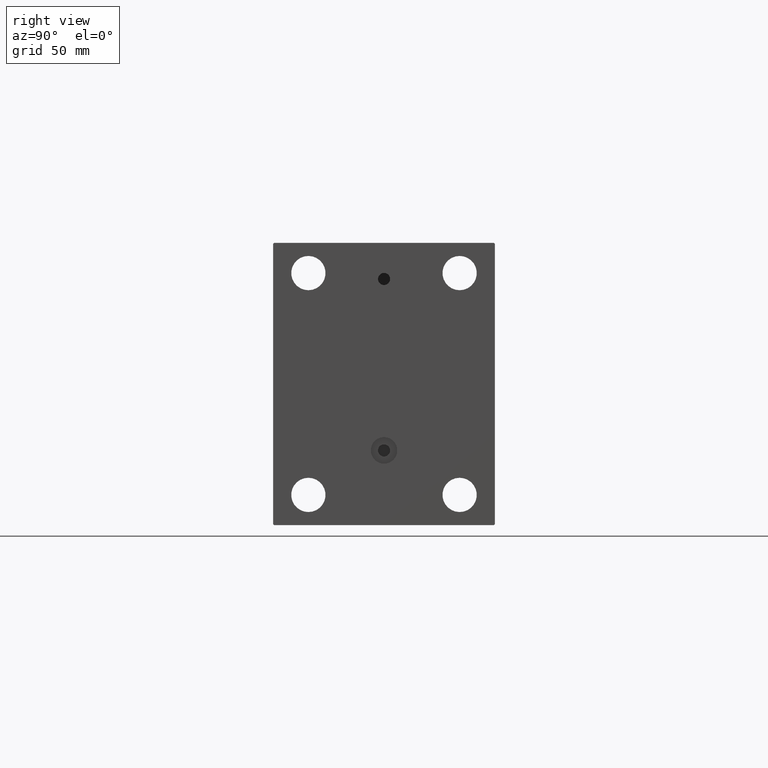
[diagram: clean part render]
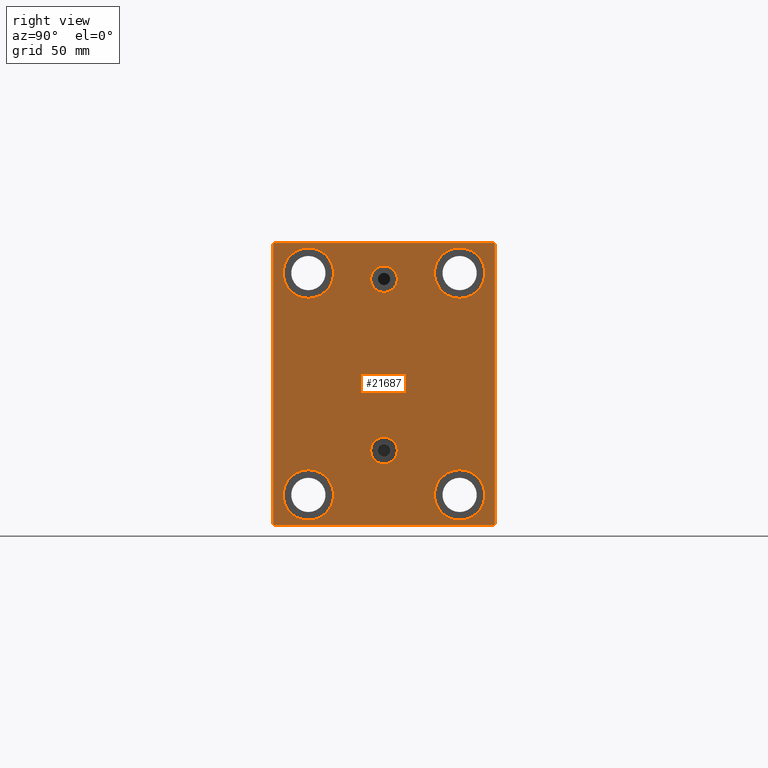
[diagram: same view with one face highlighted and labeled with its STEP entity id]
A machine part, right view. The second image highlights one B-rep face of the part: STEP entity #21687.
In plain terms, the highlighted planar face has unit normal (1, 0, 0).
Its self-contained STEP definition (entity closure, byte-faithful):
#593 = CARTESIAN_POINT ( 'NONE',  ( 243.0000000000000000, 37.49999999999997868, -67.49999999999998579 ) ) ;
#860 = CIRCLE ( 'NONE', #28076, 12.49999999999999645 ) ;
#1037 = EDGE_CURVE ( 'NONE', #4973, #43683, #3001, .T. ) ;
#1264 = DIRECTION ( 'NONE',  ( 0.000000000000000000, 0.000000000000000000, 1.000000000000000000 ) ) ;
#1267 = CARTESIAN_POINT ( 'NONE',  ( 243.0000000000000000, 62.25000000000153477, -62.24999999999806732 ) ) ;
#1695 = CARTESIAN_POINT ( 'NONE',  ( 243.0000000000000000, -55.00000000000000711, 69.99999999999998579 ) ) ;
#1856 = EDGE_CURVE ( 'NONE', #18514, #25308, #41291, .T. ) ;
#2085 = CARTESIAN_POINT ( 'NONE',  ( 243.0000000000000000, 37.50000000000000711, 42.50000000000000711 ) ) ;
#2235 = VECTOR ( 'NONE', #36318, 1000.000000000000000 ) ;
#2495 = VECTOR ( 'NONE', #32603, 1000.000000000000000 ) ;
#2820 = ORIENTED_EDGE ( 'NONE', *, *, #39712, .T. ) ;
#3001 = CIRCLE ( 'NONE', #13331, 12.49999999999999645 ) ;
#3045 = ORIENTED_EDGE ( 'NONE', *, *, #14257, .T. ) ;
#3075 = FACE_OUTER_BOUND ( 'NONE', #15352, .T. ) ;
#3514 = VERTEX_POINT ( 'NONE', #7427 ) ;
#3901 = AXIS2_PLACEMENT_3D ( 'NONE', #6050, #23329, #16191 ) ;
#4973 = VERTEX_POINT ( 'NONE', #593 ) ;
#5307 = DIRECTION ( 'NONE',  ( 0.000000000000000000, 1.000000000000000000, 2.523234146875355012E-16 ) ) ;
#5318 = CARTESIAN_POINT ( 'NONE',  ( 243.0000000000000000, 37.49999999999997868, -54.99999999999999289 ) ) ;
#5478 = VERTEX_POINT ( 'NONE', #29472 ) ;
#5537 = ORIENTED_EDGE ( 'NONE', *, *, #7844, .F. ) ;
#5753 = EDGE_CURVE ( 'NONE', #27516, #32359, #42120, .T. ) ;
#6050 = CARTESIAN_POINT ( 'NONE',  ( 243.0000000000000000, -8.775864102628257178E-15, 52.00000000000000711 ) ) ;
#6467 = LINE ( 'NONE', #38238, #35121 ) ;
#6695 = DIRECTION ( 'NONE',  ( 0.000000000000000000, -0.7071067811865474617, -0.7071067811865474617 ) ) ;
#7046 = AXIS2_PLACEMENT_3D ( 'NONE', #19868, #26314, #29329 ) ;
#7392 = ORIENTED_EDGE ( 'NONE', *, *, #22010, .T. ) ;
#7417 = LINE ( 'NONE', #21484, #8755 ) ;
#7427 = CARTESIAN_POINT ( 'NONE',  ( 243.0000000000000000, 54.50000000000002132, -70.00000000000000000 ) ) ;
#7844 = EDGE_CURVE ( 'NONE', #25308, #18514, #21518, .T. ) ;
#8362 = CARTESIAN_POINT ( 'NONE',  ( 243.0000000000000000, -37.50000000000002132, -42.49999999999999289 ) ) ;
#8755 = VECTOR ( 'NONE', #32075, 1000.000000000000000 ) ;
#9143 = DIRECTION ( 'NONE',  ( 0.000000000000000000, 0.000000000000000000, 1.000000000000000000 ) ) ;
#9185 = CARTESIAN_POINT ( 'NONE',  ( 243.0000000000000000, -37.50000000000000711, 67.50000000000000000 ) ) ;
#9306 = CARTESIAN_POINT ( 'NONE',  ( 243.0000000000000000, 54.49999999999993605, 70.00000000000000000 ) ) ;
#9762 = CARTESIAN_POINT ( 'NONE',  ( 243.0000000000000000, 0.000000000000000000, 0.000000000000000000 ) ) ;
#9817 = CARTESIAN_POINT ( 'NONE',  ( 243.0000000000000000, -54.50000000000000711, -70.00000000000002842 ) ) ;
#10324 = DIRECTION ( 'NONE',  ( -1.000000000000000000, -0.000000000000000000, -0.000000000000000000 ) ) ;
#10354 = DIRECTION ( 'NONE',  ( -1.000000000000000000, -0.000000000000000000, -0.000000000000000000 ) ) ;
#10529 = CARTESIAN_POINT ( 'NONE',  ( 243.0000000000000000, -37.50000000000002132, -67.49999999999998579 ) ) ;
#10673 = VERTEX_POINT ( 'NONE', #9185 ) ;
#10689 = ORIENTED_EDGE ( 'NONE', *, *, #1856, .F. ) ;
#10693 = VERTEX_POINT ( 'NONE', #10529 ) ;
#11223 = VECTOR ( 'NONE', #15520, 1000.000000000000000 ) ;
#11432 = CARTESIAN_POINT ( 'NONE',  ( 243.0000000000000000, -55.00000000000000711, -69.50000000000007105 ) ) ;
#11794 = CARTESIAN_POINT ( 'NONE',  ( 243.0000000000000000, 4.847152031025224453E-15, -26.41999999999999815 ) ) ;
#11866 = LINE ( 'NONE', #1267, #2495 ) ;
#11938 = DIRECTION ( 'NONE',  ( 0.000000000000000000, 0.000000000000000000, 1.000000000000000000 ) ) ;
#12164 = CARTESIAN_POINT ( 'NONE',  ( 243.0000000000000000, -37.50000000000002132, -54.99999999999999289 ) ) ;
#12994 = DIRECTION ( 'NONE',  ( 0.000000000000000000, 0.000000000000000000, -1.000000000000000000 ) ) ;
#13331 = AXIS2_PLACEMENT_3D ( 'NONE', #5318, #19375, #33195 ) ;
#13946 = ORIENTED_EDGE ( 'NONE', *, *, #22569, .T. ) ;
#14257 = EDGE_CURVE ( 'NONE', #30016, #17908, #6467, .T. ) ;
#14722 = ORIENTED_EDGE ( 'NONE', *, *, #42349, .T. ) ;
#14915 = LINE ( 'NONE', #28952, #2235 ) ;
#15180 = DIRECTION ( 'NONE',  ( -1.000000000000000000, -0.000000000000000000, -0.000000000000000000 ) ) ;
#15352 = EDGE_LOOP ( 'NONE', ( #15529, #3045, #27766, #29504, #27917, #2820, #7392, #27619 ) ) ;
#15520 = DIRECTION ( 'NONE',  ( 0.000000000000000000, 0.000000000000000000, -1.000000000000000000 ) ) ;
#15529 = ORIENTED_EDGE ( 'NONE', *, *, #25202, .T. ) ;
#15678 = CARTESIAN_POINT ( 'NONE',  ( 243.0000000000000000, 55.00000000000002132, -69.49999999999997158 ) ) ;
#16089 = CIRCLE ( 'NONE', #16820, 12.49999999999999645 ) ;
#16191 = DIRECTION ( 'NONE',  ( 0.000000000000000000, 0.000000000000000000, -1.000000000000000000 ) ) ;
#16363 = ORIENTED_EDGE ( 'NONE', *, *, #28517, .T. ) ;
#16729 = EDGE_CURVE ( 'NONE', #10673, #20280, #16089, .T. ) ;
#16820 = AXIS2_PLACEMENT_3D ( 'NONE', #34990, #10354, #34761 ) ;
#16881 = CIRCLE ( 'NONE', #27877, 12.49999999999999645 ) ;
#17183 = CARTESIAN_POINT ( 'NONE',  ( 243.0000000000000000, -37.50000000000000711, 42.50000000000000711 ) ) ;
#17514 = CARTESIAN_POINT ( 'NONE',  ( 243.0000000000000000, 4.041334437186266200E-15, -33.00000000000000000 ) ) ;
#17669 = ORIENTED_EDGE ( 'NONE', *, *, #30307, .T. ) ;
#17908 = VERTEX_POINT ( 'NONE', #19492 ) ;
#18020 = EDGE_LOOP ( 'NONE', ( #13946, #25655 ) ) ;
#18113 = CARTESIAN_POINT ( 'NONE',  ( 243.0000000000000000, -62.24999999999776890, -62.25000000000295586 ) ) ;
#18365 = AXIS2_PLACEMENT_3D ( 'NONE', #31510, #10324, #23915 ) ;
#18514 = VERTEX_POINT ( 'NONE', #11794 ) ;
#18878 = EDGE_CURVE ( 'NONE', #28911, #21346, #32389, .T. ) ;
#18916 = LINE ( 'NONE', #32959, #28899 ) ;
#19194 = CARTESIAN_POINT ( 'NONE',  ( 243.0000000000000000, 37.50000000000000711, 67.50000000000000000 ) ) ;
#19307 = EDGE_LOOP ( 'NONE', ( #17669, #23529 ) ) ;
#19375 = DIRECTION ( 'NONE',  ( -1.000000000000000000, -0.000000000000000000, -0.000000000000000000 ) ) ;
#19492 = CARTESIAN_POINT ( 'NONE',  ( 243.0000000000000000, -55.00000000000000711, 69.50000000000001421 ) ) ;
#19674 = DIRECTION ( 'NONE',  ( 1.000000000000000000, 0.000000000000000000, 0.000000000000000000 ) ) ;
#19807 = CIRCLE ( 'NONE', #30124, 6.580000000000002736 ) ;
#19814 = CARTESIAN_POINT ( 'NONE',  ( 243.0000000000000000, -37.50000000000000711, 55.00000000000000711 ) ) ;
#19868 = CARTESIAN_POINT ( 'NONE',  ( 243.0000000000000000, -37.50000000000002132, -54.99999999999999289 ) ) ;
#19907 = FACE_BOUND ( 'NONE', #42452, .T. ) ;
#20037 = CIRCLE ( 'NONE', #38395, 12.49999999999999645 ) ;
#20196 = DIRECTION ( 'NONE',  ( -1.000000000000000000, -0.000000000000000000, -0.000000000000000000 ) ) ;
#20267 = EDGE_LOOP ( 'NONE', ( #21757, #40140 ) ) ;
#20280 = VERTEX_POINT ( 'NONE', #17183 ) ;
#20637 = CARTESIAN_POINT ( 'NONE',  ( 243.0000000000000000, -8.775864102628257178E-15, 45.42000000000000171 ) ) ;
#20639 = DIRECTION ( 'NONE',  ( 1.000000000000000000, 0.000000000000000000, 0.000000000000000000 ) ) ;
#20978 = DIRECTION ( 'NONE',  ( 1.000000000000000000, 0.000000000000000000, -0.000000000000000000 ) ) ;
#21091 = CARTESIAN_POINT ( 'NONE',  ( 243.0000000000000000, -8.775864102628257178E-15, 52.00000000000000711 ) ) ;
#21252 = AXIS2_PLACEMENT_3D ( 'NONE', #9762, #19674, #12994 ) ;
#21346 = VERTEX_POINT ( 'NONE', #9817 ) ;
#21427 = EDGE_CURVE ( 'NONE', #31028, #25070, #27122, .T. ) ;
#21484 = CARTESIAN_POINT ( 'NONE',  ( 243.0000000000000000, 55.00000000000002132, -70.00000000000000000 ) ) ;
#21518 = CIRCLE ( 'NONE', #30426, 6.580000000000002736 ) ;
#21687 = ADVANCED_FACE ( 'NONE', ( #23577, #27024, #27487, #37620, #37169, #19907, #3075 ), #34175, .T. ) ;
#21757 = ORIENTED_EDGE ( 'NONE', *, *, #1037, .T. ) ;
#22010 = EDGE_CURVE ( 'NONE', #44885, #5478, #7417, .T. ) ;
#22569 = EDGE_CURVE ( 'NONE', #25070, #31028, #32335, .T. ) ;
#22772 = EDGE_CURVE ( 'NONE', #5478, #32577, #34227, .T. ) ;
#22826 = EDGE_CURVE ( 'NONE', #43683, #4973, #16881, .T. ) ;
#22878 = EDGE_CURVE ( 'NONE', #32359, #27516, #19807, .T. ) ;
#23329 = DIRECTION ( 'NONE',  ( 1.000000000000000000, 0.000000000000000000, 0.000000000000000000 ) ) ;
#23529 = ORIENTED_EDGE ( 'NONE', *, *, #16729, .T. ) ;
#23577 = FACE_BOUND ( 'NONE', #37125, .T. ) ;
#23915 = DIRECTION ( 'NONE',  ( 0.000000000000000000, 0.000000000000000000, 1.000000000000000000 ) ) ;
#24110 = VERTEX_POINT ( 'NONE', #8362 ) ;
#25070 = VERTEX_POINT ( 'NONE', #2085 ) ;
#25202 = EDGE_CURVE ( 'NONE', #32577, #30016, #14915, .T. ) ;
#25308 = VERTEX_POINT ( 'NONE', #29410 ) ;
#25655 = ORIENTED_EDGE ( 'NONE', *, *, #21427, .T. ) ;
#26314 = DIRECTION ( 'NONE',  ( -1.000000000000000000, -0.000000000000000000, -0.000000000000000000 ) ) ;
#26480 = DIRECTION ( 'NONE',  ( -1.000000000000000000, -0.000000000000000000, -0.000000000000000000 ) ) ;
#26902 = CIRCLE ( 'NONE', #7046, 12.49999999999999645 ) ;
#26923 = CARTESIAN_POINT ( 'NONE',  ( 243.0000000000000000, -7.970046508789298136E-15, 58.58000000000000540 ) ) ;
#27024 = FACE_BOUND ( 'NONE', #42582, .T. ) ;
#27122 = CIRCLE ( 'NONE', #35213, 12.49999999999999645 ) ;
#27487 = FACE_BOUND ( 'NONE', #20267, .T. ) ;
#27516 = VERTEX_POINT ( 'NONE', #26923 ) ;
#27619 = ORIENTED_EDGE ( 'NONE', *, *, #22772, .T. ) ;
#27766 = ORIENTED_EDGE ( 'NONE', *, *, #31874, .T. ) ;
#27877 = AXIS2_PLACEMENT_3D ( 'NONE', #37451, #20196, #9143 ) ;
#27917 = ORIENTED_EDGE ( 'NONE', *, *, #36519, .T. ) ;
#28076 = AXIS2_PLACEMENT_3D ( 'NONE', #12164, #15180, #11938 ) ;
#28324 = DIRECTION ( 'NONE',  ( 1.000000000000000000, 0.000000000000000000, -0.000000000000000000 ) ) ;
#28327 = DIRECTION ( 'NONE',  ( 0.000000000000000000, 0.000000000000000000, 1.000000000000000000 ) ) ;
#28517 = EDGE_CURVE ( 'NONE', #24110, #10693, #860, .T. ) ;
#28899 = VECTOR ( 'NONE', #5307, 1000.000000000000000 ) ;
#28911 = VERTEX_POINT ( 'NONE', #11432 ) ;
#28952 = CARTESIAN_POINT ( 'NONE',  ( 243.0000000000000000, 54.99999999999999289, 70.00000000000000000 ) ) ;
#29329 = DIRECTION ( 'NONE',  ( 0.000000000000000000, 0.000000000000000000, 1.000000000000000000 ) ) ;
#29410 = CARTESIAN_POINT ( 'NONE',  ( 243.0000000000000000, 4.041334437186266200E-15, -39.58000000000000540 ) ) ;
#29472 = CARTESIAN_POINT ( 'NONE',  ( 243.0000000000000000, 54.99999999999999289, 69.49999999999995737 ) ) ;
#29504 = ORIENTED_EDGE ( 'NONE', *, *, #18878, .T. ) ;
#30016 = VERTEX_POINT ( 'NONE', #44715 ) ;
#30026 = VECTOR ( 'NONE', #32158, 999.9999999999998863 ) ;
#30093 = CARTESIAN_POINT ( 'NONE',  ( 243.0000000000000000, 62.24999999999997158, 62.24999999999997158 ) ) ;
#30124 = AXIS2_PLACEMENT_3D ( 'NONE', #21091, #20639, #38583 ) ;
#30307 = EDGE_CURVE ( 'NONE', #20280, #10673, #20037, .T. ) ;
#30426 = AXIS2_PLACEMENT_3D ( 'NONE', #31112, #20978, #28327 ) ;
#31028 = VERTEX_POINT ( 'NONE', #19194 ) ;
#31108 = DIRECTION ( 'NONE',  ( 0.000000000000000000, 0.000000000000000000, 1.000000000000000000 ) ) ;
#31112 = CARTESIAN_POINT ( 'NONE',  ( 243.0000000000000000, 4.041334437186266200E-15, -33.00000000000000000 ) ) ;
#31510 = CARTESIAN_POINT ( 'NONE',  ( 243.0000000000000000, 37.50000000000000711, 55.00000000000000711 ) ) ;
#31675 = CARTESIAN_POINT ( 'NONE',  ( 243.0000000000000000, 37.50000000000000711, 55.00000000000000711 ) ) ;
#31874 = EDGE_CURVE ( 'NONE', #17908, #28911, #39932, .T. ) ;
#32075 = DIRECTION ( 'NONE',  ( 0.000000000000000000, -1.982541115402065110E-16, 1.000000000000000000 ) ) ;
#32158 = DIRECTION ( 'NONE',  ( -0.000000000000000000, 0.7071067811865771047, -0.7071067811865180408 ) ) ;
#32335 = CIRCLE ( 'NONE', #18365, 12.49999999999999645 ) ;
#32359 = VERTEX_POINT ( 'NONE', #20637 ) ;
#32389 = LINE ( 'NONE', #18113, #30026 ) ;
#32577 = VERTEX_POINT ( 'NONE', #9306 ) ;
#32603 = DIRECTION ( 'NONE',  ( -0.000000000000000000, 0.7071067811865279218, 0.7071067811865672237 ) ) ;
#32959 = CARTESIAN_POINT ( 'NONE',  ( 243.0000000000000000, -55.00000000000000711, -70.00000000000002842 ) ) ;
#33195 = DIRECTION ( 'NONE',  ( 0.000000000000000000, 0.000000000000000000, 1.000000000000000000 ) ) ;
#33550 = DIRECTION ( 'NONE',  ( -0.000000000000000000, -0.7071067811865474617, 0.7071067811865474617 ) ) ;
#33786 = CARTESIAN_POINT ( 'NONE',  ( 243.0000000000000000, 37.49999999999997868, -42.49999999999999289 ) ) ;
#33806 = ORIENTED_EDGE ( 'NONE', *, *, #22878, .F. ) ;
#33850 = DIRECTION ( 'NONE',  ( 0.000000000000000000, 0.000000000000000000, 1.000000000000000000 ) ) ;
#34043 = ORIENTED_EDGE ( 'NONE', *, *, #5753, .F. ) ;
#34175 = PLANE ( 'NONE',  #21252 ) ;
#34227 = LINE ( 'NONE', #30093, #45527 ) ;
#34761 = DIRECTION ( 'NONE',  ( 0.000000000000000000, 0.000000000000000000, 1.000000000000000000 ) ) ;
#34990 = CARTESIAN_POINT ( 'NONE',  ( 243.0000000000000000, -37.50000000000000711, 55.00000000000000711 ) ) ;
#35121 = VECTOR ( 'NONE', #6695, 1000.000000000000114 ) ;
#35213 = AXIS2_PLACEMENT_3D ( 'NONE', #31675, #42487, #1264 ) ;
#36318 = DIRECTION ( 'NONE',  ( 0.000000000000000000, -1.000000000000000000, -1.261617073437677999E-16 ) ) ;
#36519 = EDGE_CURVE ( 'NONE', #21346, #3514, #18916, .T. ) ;
#37125 = EDGE_LOOP ( 'NONE', ( #33806, #34043 ) ) ;
#37169 = FACE_BOUND ( 'NONE', #18020, .T. ) ;
#37451 = CARTESIAN_POINT ( 'NONE',  ( 243.0000000000000000, 37.49999999999997868, -54.99999999999999289 ) ) ;
#37620 = FACE_BOUND ( 'NONE', #19307, .T. ) ;
#38238 = CARTESIAN_POINT ( 'NONE',  ( 243.0000000000000000, -62.25000000000000711, 62.25000000000000711 ) ) ;
#38395 = AXIS2_PLACEMENT_3D ( 'NONE', #19814, #26480, #33850 ) ;
#38583 = DIRECTION ( 'NONE',  ( 0.000000000000000000, 0.000000000000000000, -1.000000000000000000 ) ) ;
#39712 = EDGE_CURVE ( 'NONE', #3514, #44885, #11866, .T. ) ;
#39932 = LINE ( 'NONE', #1695, #11223 ) ;
#40140 = ORIENTED_EDGE ( 'NONE', *, *, #22826, .T. ) ;
#40539 = AXIS2_PLACEMENT_3D ( 'NONE', #17514, #28324, #31108 ) ;
#41291 = CIRCLE ( 'NONE', #40539, 6.580000000000002736 ) ;
#42120 = CIRCLE ( 'NONE', #3901, 6.580000000000002736 ) ;
#42349 = EDGE_CURVE ( 'NONE', #10693, #24110, #26902, .T. ) ;
#42452 = EDGE_LOOP ( 'NONE', ( #14722, #16363 ) ) ;
#42487 = DIRECTION ( 'NONE',  ( -1.000000000000000000, -0.000000000000000000, -0.000000000000000000 ) ) ;
#42582 = EDGE_LOOP ( 'NONE', ( #5537, #10689 ) ) ;
#43683 = VERTEX_POINT ( 'NONE', #33786 ) ;
#44715 = CARTESIAN_POINT ( 'NONE',  ( 243.0000000000000000, -54.50000000000003553, 69.99999999999998579 ) ) ;
#44885 = VERTEX_POINT ( 'NONE', #15678 ) ;
#45527 = VECTOR ( 'NONE', #33550, 1000.000000000000114 ) ;